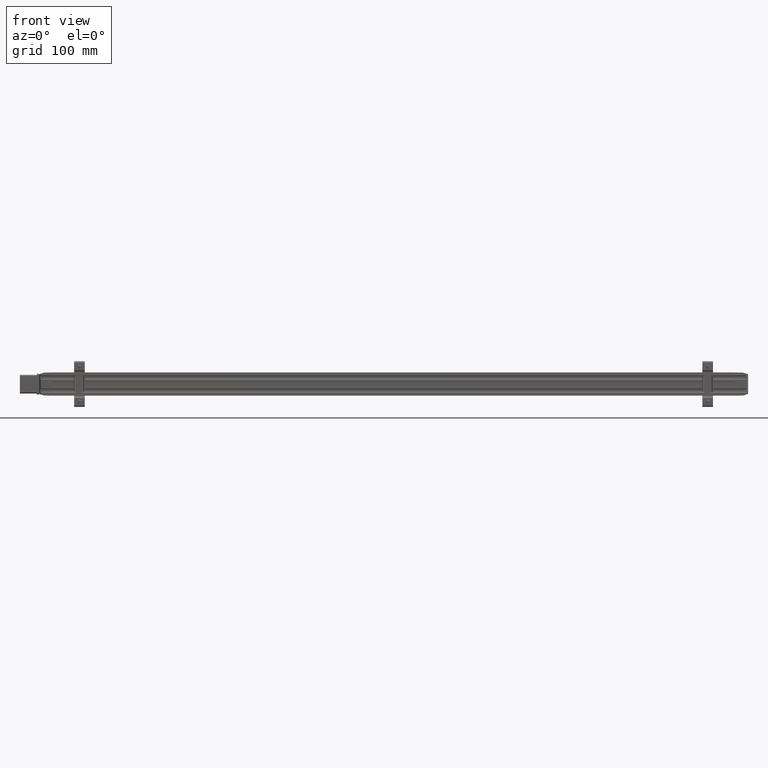
[diagram: clean part render]
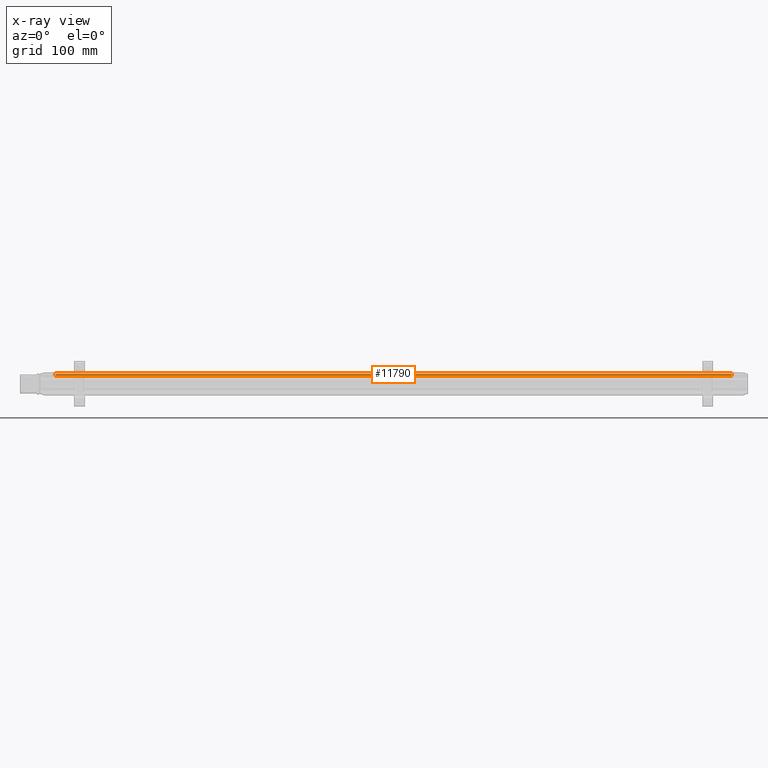
[diagram: x-ray — body ghosted, one internal face saturated and labeled with its STEP entity id]
A machine part, front view, then the same camera in x-ray: the body is ghosted and one INTERNAL B-rep face — a face not visible from any outside direction — is saturated and labeled: STEP entity #11790.
In plain terms, the highlighted cylindrical surface (edge-blend (fillet) strip) has radius 1.35 mm, axis along (1, -0, -0).
Its self-contained STEP definition (entity closure, byte-faithful):
#95 = VERTEX_POINT ( 'NONE', #17884 ) ;
#242 = EDGE_CURVE ( 'NONE', #95, #37220, #15743, .T. ) ;
#3910 = CIRCLE ( 'NONE', #9813, 0.05314960629921262197 ) ;
#7603 = DIRECTION ( 'NONE',  ( 0.000000000000000000, 0.000000000000000000, -1.000000000000000000 ) ) ;
#9675 = ORIENTED_EDGE ( 'NONE', *, *, #34681, .F. ) ;
#9813 = AXIS2_PLACEMENT_3D ( 'NONE', #9961, #17869, #20883 ) ;
#9961 = CARTESIAN_POINT ( 'NONE',  ( -8.670873715717540620, 0.3624051130314960845, -0.1379077470866143795 ) ) ;
#10136 = ORIENTED_EDGE ( 'NONE', *, *, #13042, .T. ) ;
#11644 = LINE ( 'NONE', #24934, #43743 ) ;
#11790 = ADVANCED_FACE ( 'NONE', ( #28550 ), #18745, .F. ) ;
#12698 = CARTESIAN_POINT ( 'NONE',  ( 29.14331466059838860, 0.3624051130314960845, -0.1379077470866143795 ) ) ;
#13042 = EDGE_CURVE ( 'NONE', #20029, #13975, #11644, .T. ) ;
#13163 = DIRECTION ( 'NONE',  ( 1.000000000000000000, -6.829451644768560152E-25, -1.340817019842840072E-28 ) ) ;
#13975 = VERTEX_POINT ( 'NONE', #25903 ) ;
#15137 = DIRECTION ( 'NONE',  ( 1.000000000000000000, -6.829894528618840264E-25, -1.341063538875720069E-28 ) ) ;
#15743 = LINE ( 'NONE', #43716, #31923 ) ;
#17083 = CARTESIAN_POINT ( 'NONE',  ( -8.670873715717540620, 0.4149696127634071030, -0.1300430145612655464 ) ) ;
#17869 = DIRECTION ( 'NONE',  ( 1.000000000000000000, 2.035898828508829812E-16, -1.361673625697949946E-16 ) ) ;
#17884 = CARTESIAN_POINT ( 'NONE',  ( -8.670873715717540620, 0.4139690767234905922, -0.1507933319833897612 ) ) ;
#18745 = CYLINDRICAL_SURFACE ( 'NONE', #20186, 0.05314960629921258728 ) ;
#20029 = VERTEX_POINT ( 'NONE', #17083 ) ;
#20186 = AXIS2_PLACEMENT_3D ( 'NONE', #25499, #39489, #7603 ) ;
#20883 = DIRECTION ( 'NONE',  ( 0.000000000000000000, -1.000000000000000000, 0.000000000000000000 ) ) ;
#22293 = EDGE_CURVE ( 'NONE', #13975, #37220, #35548, .T. ) ;
#23401 = DIRECTION ( 'NONE',  ( 0.000000000000000000, 1.000000000000000000, 0.000000000000000000 ) ) ;
#23651 = AXIS2_PLACEMENT_3D ( 'NONE', #12698, #13163, #23401 ) ;
#24376 = ORIENTED_EDGE ( 'NONE', *, *, #22293, .T. ) ;
#24934 = CARTESIAN_POINT ( 'NONE',  ( -8.858267716535433323, 0.4149696127634071030, -0.1300430145612655464 ) ) ;
#25499 = CARTESIAN_POINT ( 'NONE',  ( -8.858267716535433323, 0.3624051130314960845, -0.1379077470866143795 ) ) ;
#25903 = CARTESIAN_POINT ( 'NONE',  ( 29.14331466059838860, 0.4149696127634071030, -0.1300430145612655464 ) ) ;
#28550 = FACE_OUTER_BOUND ( 'NONE', #36046, .T. ) ;
#30176 = DIRECTION ( 'NONE',  ( 1.000000000000000000, -6.829894528618840264E-25, -1.341063538875720069E-28 ) ) ;
#31923 = VECTOR ( 'NONE', #30176, 39.37007874015748143 ) ;
#34681 = EDGE_CURVE ( 'NONE', #20029, #95, #3910, .T. ) ;
#35548 = CIRCLE ( 'NONE', #23651, 0.05314960629921262197 ) ;
#35559 = ORIENTED_EDGE ( 'NONE', *, *, #242, .F. ) ;
#36046 = EDGE_LOOP ( 'NONE', ( #10136, #24376, #35559, #9675 ) ) ;
#37220 = VERTEX_POINT ( 'NONE', #37818 ) ;
#37818 = CARTESIAN_POINT ( 'NONE',  ( 29.14331466059838860, 0.4139690767234905922, -0.1507933319833897612 ) ) ;
#39489 = DIRECTION ( 'NONE',  ( 1.000000000000000000, -6.829894528618840264E-25, -1.341063538875720069E-28 ) ) ;
#43716 = CARTESIAN_POINT ( 'NONE',  ( -8.858267716535433323, 0.4139690767234905922, -0.1507933319833897612 ) ) ;
#43743 = VECTOR ( 'NONE', #15137, 39.37007874015748143 ) ;